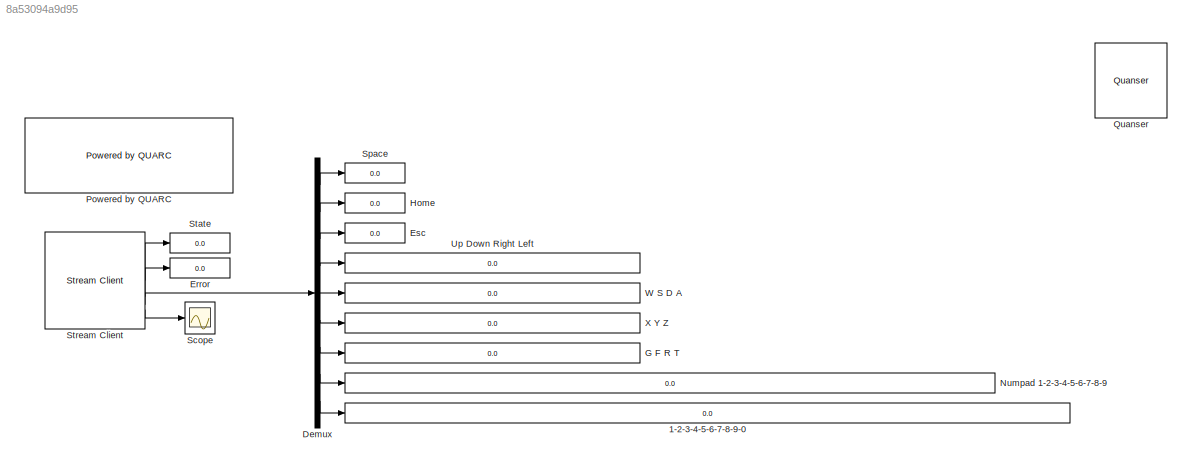
MODEL slx_8a53094a9d95
KIND model
CONFIG AbsTol = auto
CONFIG EnableMultiTasking = on
CONFIG FixedStep = 0.001
CONFIG MaxStep = auto
CONFIG MinStep = auto
CONFIG RelTol = 1e-3
CONFIG SampleTimeConstraint = Unconstrained
CONFIG SolverName = FixedStepDiscrete
CONFIG StartTime = 0.0
CONFIG StopTime = inf
BLOCK [Display] 1-2-3-4-5-6-7-8-9-0
  Decimation = 1
  NameLocation = right
BLOCK [Demux] Demux
  Outputs = [1 1 1 4 4 3 4 9 10]
BLOCK [Display] Error
  Decimation = 1
  NameLocation = right
BLOCK [Display] Esc
  Decimation = 1
  NameLocation = right
BLOCK [Display] G  F  R  T
  Decimation = 1
  NameLocation = right
BLOCK [Display] Home
  Decimation = 1
  NameLocation = right
BLOCK [Display] Numpad 1-2-3-4-5-6-7-8-9 
  Decimation = 1
  NameLocation = right
BLOCK [Reference] Powered by QUARC  REF=quarc_library/Logos/Powered by QUARC
  SourceBlock = quarc_library/Logos/Powered by QUARC
  SourceProductName = QUARC Targets
  SourceType = Powered by QUARC
BLOCK [Reference] Quanser  REF=quarc_library/Logos/Quanser
  SourceBlock = quarc_library/Logos/Quanser
  SourceProductName = QUARC Targets
  SourceType = Powered by Quanser
BLOCK [Scope] Scope
  Floating = off
  NumInputPorts = 1
  ScopeSpecificationString = Simulink.scopes.TimeScopeBlockCfg('CurrentConfiguration', extmgr.ConfigurationSet(extmgr.Configuration('Core','General UI',true),extmgr.Configuration('Core','Source UI',true),extmgr.Configuration('Sources','WiredSimulink',true),extmgr.Configuration('Visuals','Time Domain',true,'SerializedDisplays',{struct('MinYLimReal','-0.125','MaxYLimReal','1.125','YLabelReal','','MinYLimMag','0.00000','MaxYLimM...<+1500ch>
BLOCK [Display] Space
  Decimation = 1
  NameLocation = right
BLOCK [Display] State
  Decimation = 1
  NameLocation = right
BLOCK [Reference] Stream Client  REF=quarc_library/Communications/Basic/Stream Client
  AttributesFormatString = "tcpip://localhost:18799"
  SourceBlock = quarc_library/Communications/Basic/Stream Client
  SourceProductName = QUARC Targets
  SourceType = Stream Client
BLOCK [Display] Up Down Right Left
  Decimation = 1
  NameLocation = right
BLOCK [Display] W  S  D  A
  Decimation = 1
  NameLocation = right
BLOCK [Display] X  Y  Z
  Decimation = 1
  NameLocation = right
LINE Demux:1 -> Space:1
LINE Demux:2 -> Home:1
LINE Demux:3 -> Esc:1
LINE Demux:4 -> Up Down Right Left:1
LINE Demux:5 -> W  S  D  A:1
LINE Demux:6 -> X  Y  Z:1
LINE Demux:7 -> G  F  R  T:1
LINE Demux:8 -> Numpad 1-2-3-4-5-6-7-8-9 :1
LINE Demux:9 -> 1-2-3-4-5-6-7-8-9-0:1
LINE Stream Client:1 -> State:1
LINE Stream Client:2 -> Error:1
LINE Stream Client:3 -> Demux:1
LINE Stream Client:4 -> Scope:1
